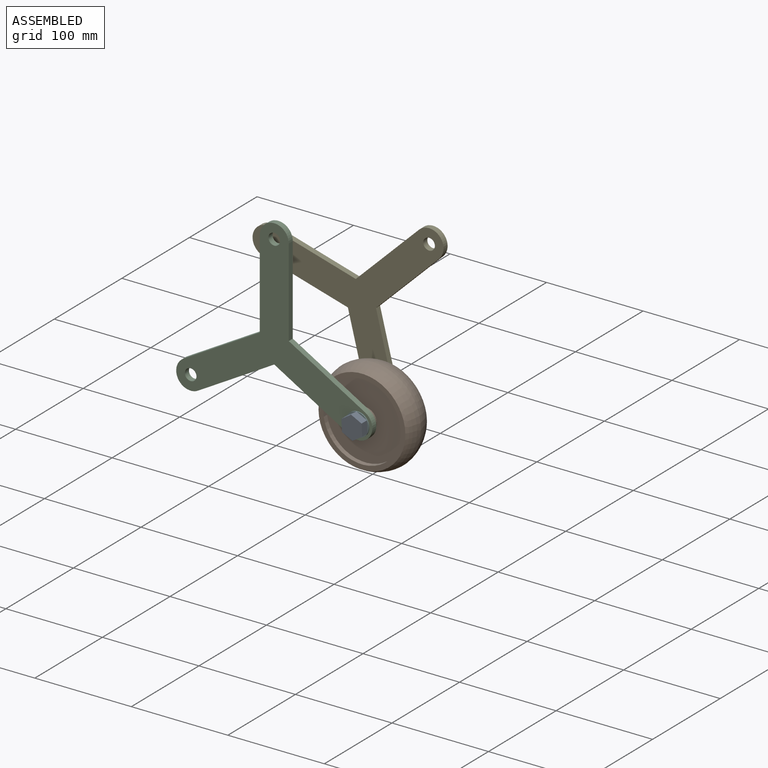
[diagram: assembled view]
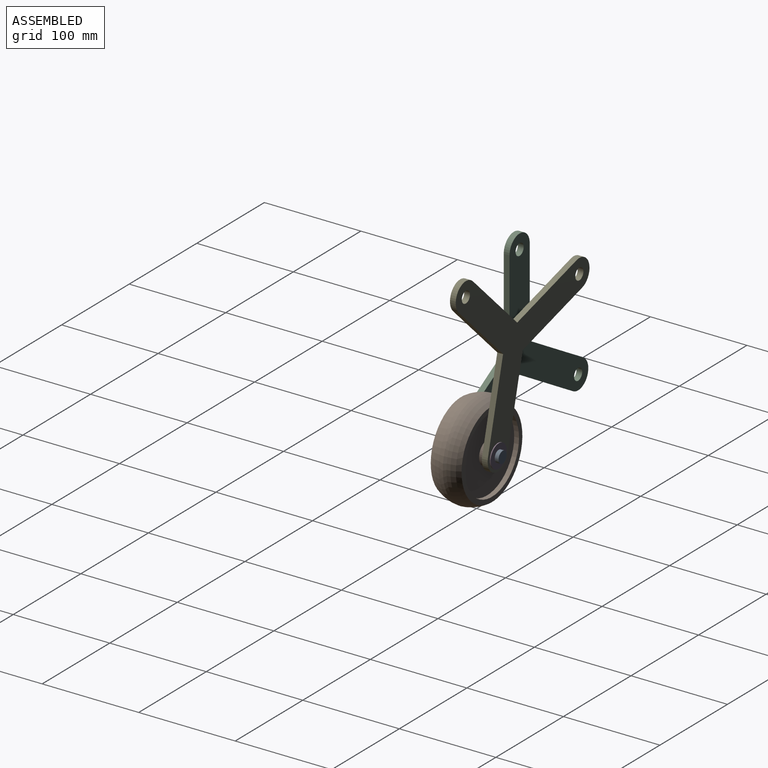
[diagram: assembled view, second angle]
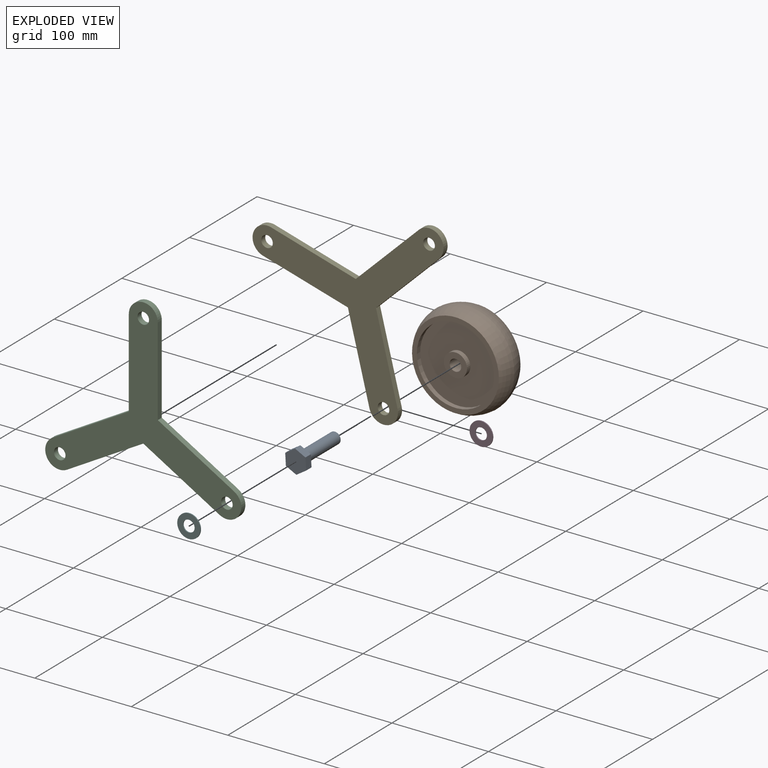
[diagram: exploded view]
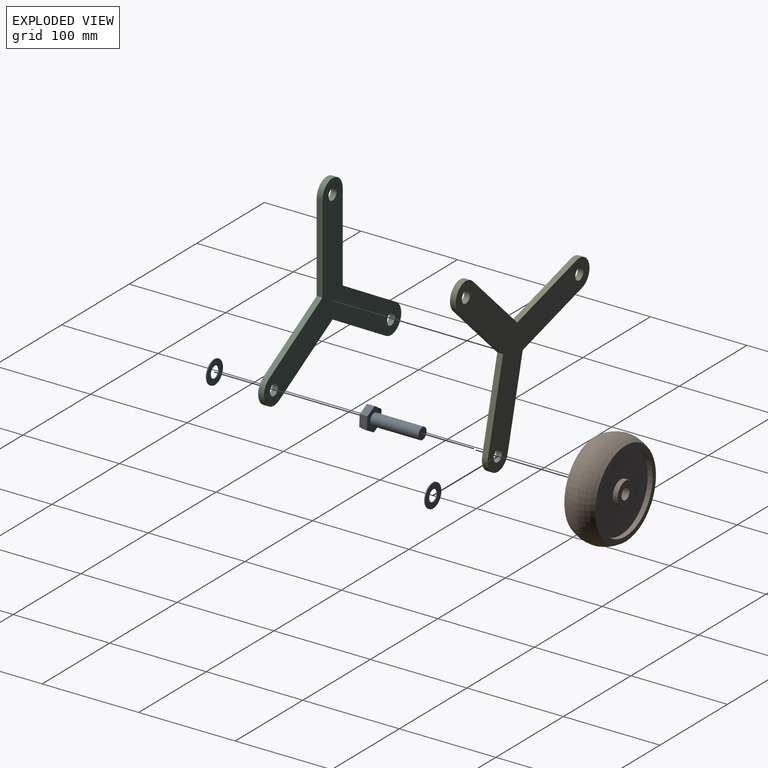
[diagram: exploded view, second angle]
ASSEMBLY  parts=6 mates=4
PART A: 10 faces, bbox 21.6x58x24.2 mm
  f0: plane 12x12mm, normal (0,-1,0), area 113.1mm2, adj f1
  f1: cylinder r=6mm len=50mm, axis (0,-1,0), area 1885mm2, adj f0,f9
  f2: plane 10.82x8mm, normal (0.45,0,-0.89), area 97mm2, adj f3,f7,f8,f9
  f3: plane 10.14x8mm, normal (-0.55,0,-0.84), area 97mm2, adj f2,f4,f8,f9
  f4: plane 12.11x8mm, normal (-1,0,0.06), area 97mm2, adj f3,f5,f8,f9
  f5: plane 10.82x8mm, normal (-0.45,0,0.89), area 97mm2, adj f4,f6,f8,f9
  f6: plane 10.14x8mm, normal (0.55,0,0.84), area 97mm2, adj f5,f7,f8,f9
  f7: plane 12.11x8mm, normal (1,0,-0.06), area 97mm2, adj f2,f6,f8,f9
  f8: plane 24.21x21.65mm, normal (0,1,0), area 381.9mm2, adj f2,f3,f4,f5,f6,f7
  f9: plane 24.21x21.65mm, normal (0,-1,0), area 268.8mm2, adj f1,f2,f3,f4,f5,f6,f7
PART B: 13 faces, bbox 100x32x100 mm
  f0: cylinder r=6mm len=32mm, axis (0,-1,0), area 1206.4mm2, adj f1,f12
  f1: plane 24x24mm, normal (0,1,0), area 339.3mm2, adj f0,f2
  f2: cylinder r=12mm len=24mm, axis (0,-1,0), area 377mm2, adj f1,f3
  f3: plane 80x80mm, normal (0,1,0), area 4574.2mm2, adj f2,f4
  f4: cylinder r=40mm len=80mm, axis (0,-1,0), area 1256.6mm2, adj f3,f5
  f5: cone r=40mm half-angle=89.5deg, axis (0,-1,0), area 1335.2mm2, adj f4,f6
  f6: torus R=16.18mm, axis (0,-1,0), area 5114.2mm2, adj f5,f7
  f7: torus R=16.18mm, axis (0,-1,0), area 5114.2mm2, adj f6,f8
  f8: cone r=40mm half-angle=89.5deg, axis (0,1,0), area 1335.2mm2, adj f7,f9
  f9: cylinder r=40mm len=80mm, axis (0,-1,0), area 1256.6mm2, adj f8,f10
  f10: plane 80x80mm, normal (0,-1,0), area 4574.2mm2, adj f9,f11
  f11: cylinder r=12mm len=24mm, axis (0,-1,0), area 377mm2, adj f10,f12
  f12: plane 24x24mm, normal (0,-1,0), area 339.3mm2, adj f0,f11
PART C: 14 faces, bbox 203.2x6x180 mm
  f0: cylinder r=15mm len=30mm, axis (0,1,0), area 282.7mm2, adj f1,f9,f12,f13
  f1: plane 91.34x6mm, normal (-1,0,0), area 548mm2, adj f0,f2,f12,f13
  f2: plane 79.1x45.67mm, normal (-0.5,0,0.87), area 548mm2, adj f1,f3,f12,f13
  f3: cylinder r=15mm len=27.99mm, axis (0,1,0), area 282.7mm2, adj f2,f4,f12,f13
  f4: plane 79.1x45.67mm, normal (0.5,0,-0.87), area 548mm2, adj f3,f5,f12,f13
  f5: plane 79.1x45.67mm, normal (-0.5,0,-0.87), area 548mm2, adj f4,f6,f12,f13
  f6: cylinder r=15mm len=27.99mm, axis (0,1,0), area 282.7mm2, adj f5,f7,f12,f13
  f7: plane 79.1x45.67mm, normal (0.5,0,0.87), area 548mm2, adj f6,f9,f12,f13
  f8: cylinder r=6mm len=12mm, axis (0,1,0), area 226.2mm2, adj f12,f13
  f9: plane 91.34x6mm, normal (1,0,0), area 548mm2, adj f0,f7,f12,f13
  f10: cylinder r=6mm len=12mm, axis (0,1,0), area 226.2mm2, adj f12,f13
  f11: cylinder r=6mm len=12mm, axis (0,1,0), area 226.2mm2, adj f12,f13
  f12: plane 203.21x180mm, normal (0,-1,0), area 9331.3mm2, adj f0,f1,f2,f3,f4,f5,f6,f7
  f13: plane 203.21x180mm, normal (0,1,0), area 9331.3mm2, adj f0,f1,f2,f3,f4,f5,f6,f7
PART D: 4 faces, bbox 24x1x24 mm
  f0: cylinder r=6mm len=12mm, axis (0,-1,0), area 37.7mm2, adj f1,f3
  f1: plane 24x24mm, normal (0,1,0), area 339.3mm2, adj f0,f2
  f2: cylinder r=12mm len=24mm, axis (0,-1,0), area 75.4mm2, adj f1,f3
  f3: plane 24x24mm, normal (0,-1,0), area 339.3mm2, adj f0,f2
PART E: same geometry as C
PART F: same geometry as D
PLACE A rot(axis=(1,0,0),180deg) t=(0,51.75,0)mm
PLACE B rot(axis=(0,-1,0),44.2deg) t=(0,0,0)mm
PLACE C t=(142.38,-16,50)mm fixed
PLACE D rot(axis=(0,1,0),45.8deg) t=(0,39,0)mm
PLACE E rot(axis=(0,1,0),45.8deg) t=(135.09,22,-67.26)mm
PLACE F t=(0,-6,0)mm
MATE fastened F.f0 <-> A.f1  axis (0,-1,0) through (0,-23,0)mm
MATE fastened E.f6 <-> D.f0  axis (0,1,0) through (0,22,0)mm
MATE revolute C.f6 <-> F.f0  axis (0,-1,0) through (0,-22,0)mm
MATE revolute B.f0 <-> C.f6  axis (0,-1,0) through (0,-16,0)mm
